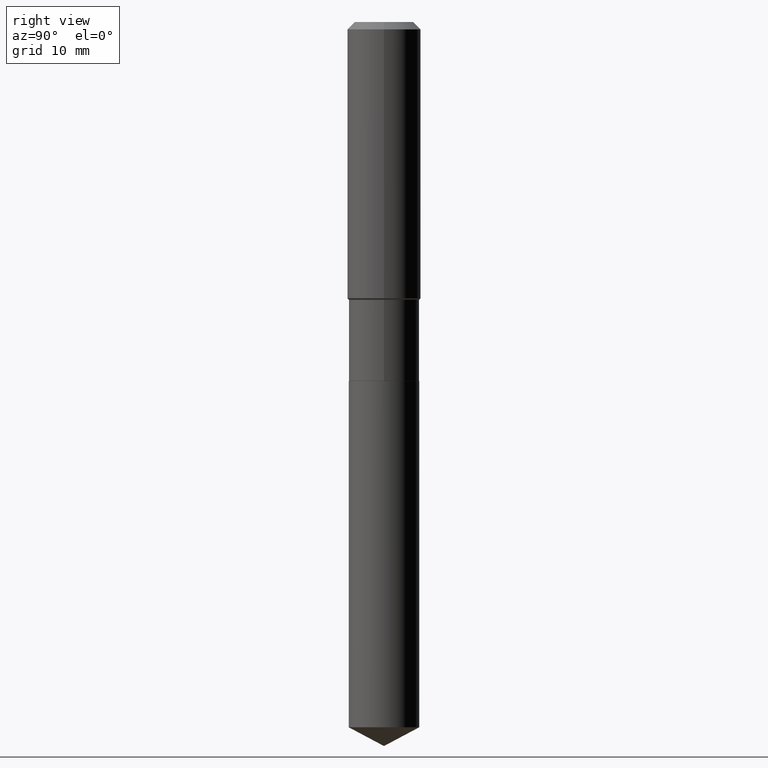
[diagram: clean part render]
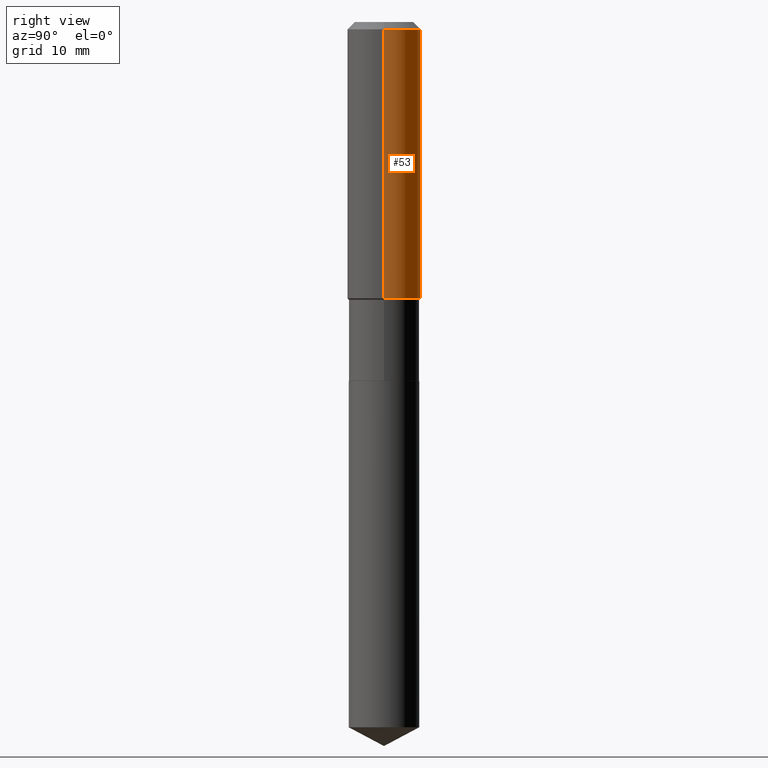
[diagram: same view with one face highlighted and labeled with its STEP entity id]
A machine part, right view. The second image highlights one B-rep face of the part: STEP entity #53.
In plain terms, the highlighted cylindrical surface (partial cylindrical patch) has radius 5.9995 mm, axis along (-0, 0, 1).
Its self-contained STEP definition (entity closure, byte-faithful):
#22 = DIRECTION ( 'NONE',  ( -2.445468806185136877E-29, 3.491481338843145188E-15, 1.000000000000000000 ) ) ;
#26 = AXIS2_PLACEMENT_3D ( 'NONE', #308, #479, #417 ) ;
#39 = DIRECTION ( 'NONE',  ( 1.000000000000000000, -6.982962677686266711E-15, 0.000000000000000000 ) ) ;
#53 = ADVANCED_FACE ( 'NONE', ( #378 ), #150, .T. ) ;
#56 = AXIS2_PLACEMENT_3D ( 'NONE', #427, #131, #39 ) ;
#68 = CARTESIAN_POINT ( 'NONE',  ( 0.2362000000000002153, -7.838724753836739036E-15, -1.772699999999999054 ) ) ;
#80 = LINE ( 'NONE', #189, #93 ) ;
#93 = VECTOR ( 'NONE', #236, 39.37007874015748143 ) ;
#95 = CARTESIAN_POINT ( 'NONE',  ( -0.2362000000000002153, -4.511047027501882961E-15, -1.772699999999999054 ) ) ;
#102 = LINE ( 'NONE', #301, #462 ) ;
#110 = CARTESIAN_POINT ( 'NONE',  ( 0.2361999999999999933, -1.814313362916447440E-15, -0.04724000000000028177 ) ) ;
#113 = ORIENTED_EDGE ( 'NONE', *, *, #393, .F. ) ;
#131 = DIRECTION ( 'NONE',  ( -2.445468806185136597E-29, 3.491481338843145583E-15, 1.000000000000000000 ) ) ;
#150 = CYLINDRICAL_SURFACE ( 'NONE', #26, 0.2362000000000001043 ) ;
#176 = EDGE_CURVE ( 'NONE', #306, #480, #80, .T. ) ;
#189 = CARTESIAN_POINT ( 'NONE',  ( -0.2362000000000001043, 1.678301941865357380E-15, -1.161852468318209317E-29 ) ) ;
#200 = VERTEX_POINT ( 'NONE', #68 ) ;
#209 = ORIENTED_EDGE ( 'NONE', *, *, #295, .T. ) ;
#228 = DIRECTION ( 'NONE',  ( -2.445468806185136597E-29, 3.491481338843145583E-15, 1.000000000000000000 ) ) ;
#236 = DIRECTION ( 'NONE',  ( -2.445468806185136877E-29, 3.491481338843145188E-15, 1.000000000000000000 ) ) ;
#295 = EDGE_CURVE ( 'NONE', #200, #306, #363, .T. ) ;
#298 = EDGE_LOOP ( 'NONE', ( #209, #465, #394, #113 ) ) ;
#301 = CARTESIAN_POINT ( 'NONE',  ( 0.2362000000000001043, -1.649375784469496920E-15, 1.151752954443000508E-29 ) ) ;
#306 = VERTEX_POINT ( 'NONE', #95 ) ;
#308 = CARTESIAN_POINT ( 'NONE',  ( 0.000000000000000000, 0.000000000000000000, 0.000000000000000000 ) ) ;
#321 = CIRCLE ( 'NONE', #438, 0.2361999999999999933 ) ;
#330 = DIRECTION ( 'NONE',  ( 1.000000000000000000, -6.982962677686266711E-15, 0.000000000000000000 ) ) ;
#343 = VERTEX_POINT ( 'NONE', #110 ) ;
#363 = CIRCLE ( 'NONE', #56, 0.2362000000000002153 ) ;
#365 = CARTESIAN_POINT ( 'NONE',  ( 1.155239464041865506E-30, -1.649375784469511859E-16, -0.04724000000000028177 ) ) ;
#375 = CARTESIAN_POINT ( 'NONE',  ( -0.2361999999999999933, -1.498841332041738346E-15, -0.04724000000000028177 ) ) ;
#378 = FACE_OUTER_BOUND ( 'NONE', #298, .T. ) ;
#393 = EDGE_CURVE ( 'NONE', #200, #343, #102, .T. ) ;
#394 = ORIENTED_EDGE ( 'NONE', *, *, #468, .F. ) ;
#417 = DIRECTION ( 'NONE',  ( 1.000000000000000000, -6.982962677686266711E-15, 4.876176775795935793E-29 ) ) ;
#427 = CARTESIAN_POINT ( 'NONE',  ( 4.335082552724389227E-29, -6.189348969367240933E-15, -1.772699999999999054 ) ) ;
#438 = AXIS2_PLACEMENT_3D ( 'NONE', #365, #228, #330 ) ;
#462 = VECTOR ( 'NONE', #22, 39.37007874015748143 ) ;
#465 = ORIENTED_EDGE ( 'NONE', *, *, #176, .T. ) ;
#468 = EDGE_CURVE ( 'NONE', #343, #480, #321, .T. ) ;
#479 = DIRECTION ( 'NONE',  ( -2.445468806185136597E-29, 3.491481338843145583E-15, 1.000000000000000000 ) ) ;
#480 = VERTEX_POINT ( 'NONE', #375 ) ;